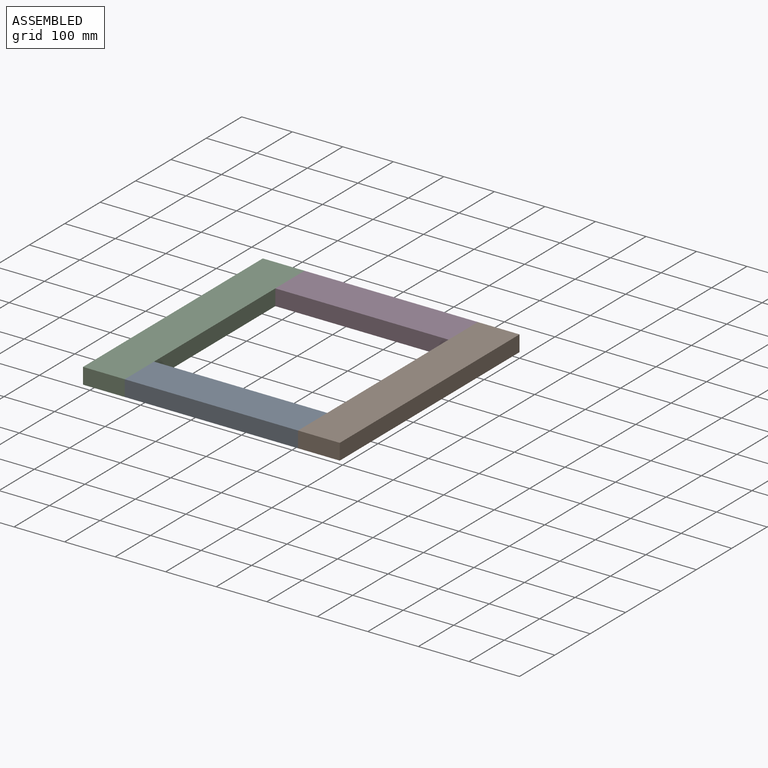
[diagram: assembled view]
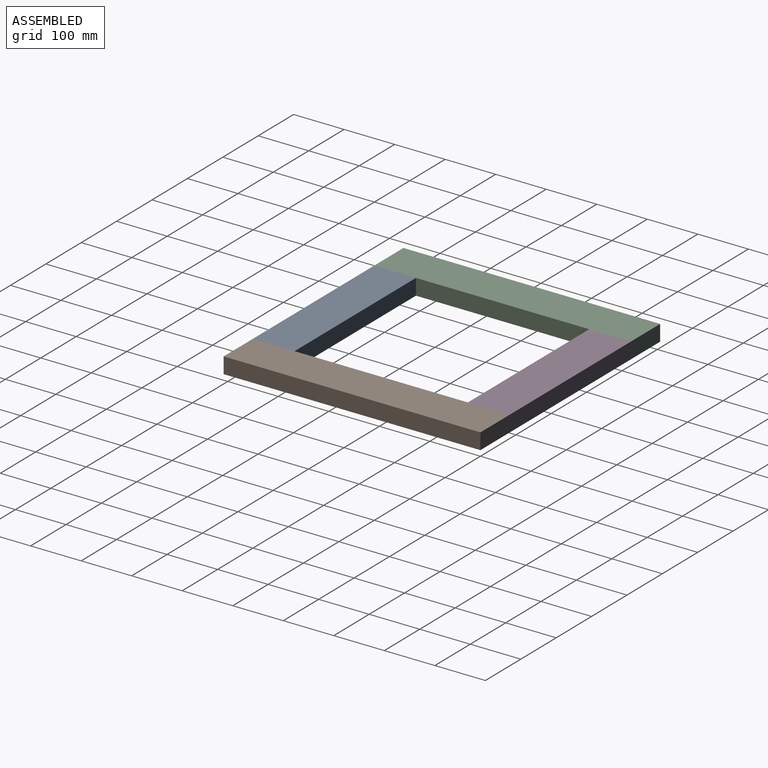
[diagram: assembled view, second angle]
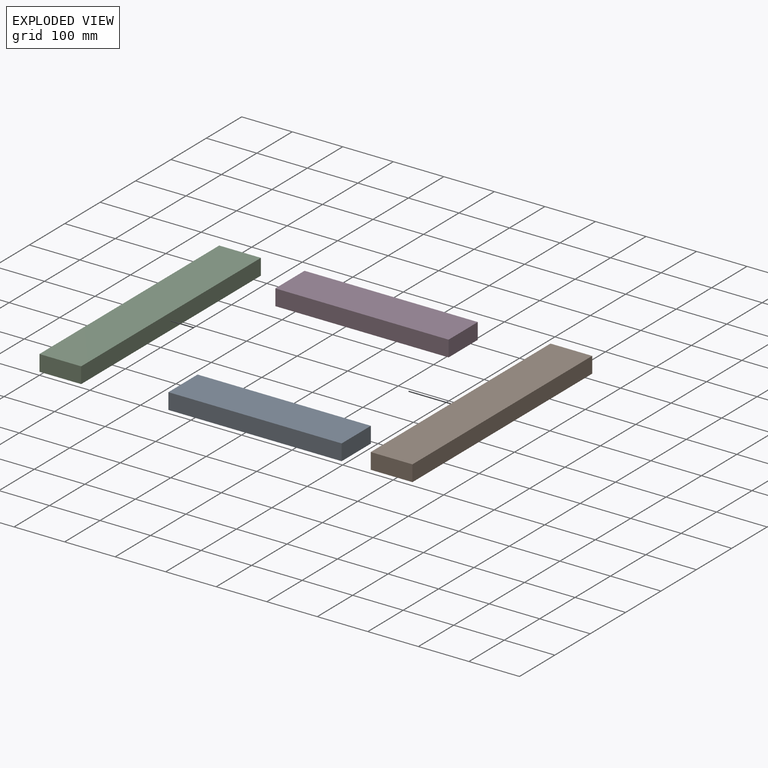
[diagram: exploded view]
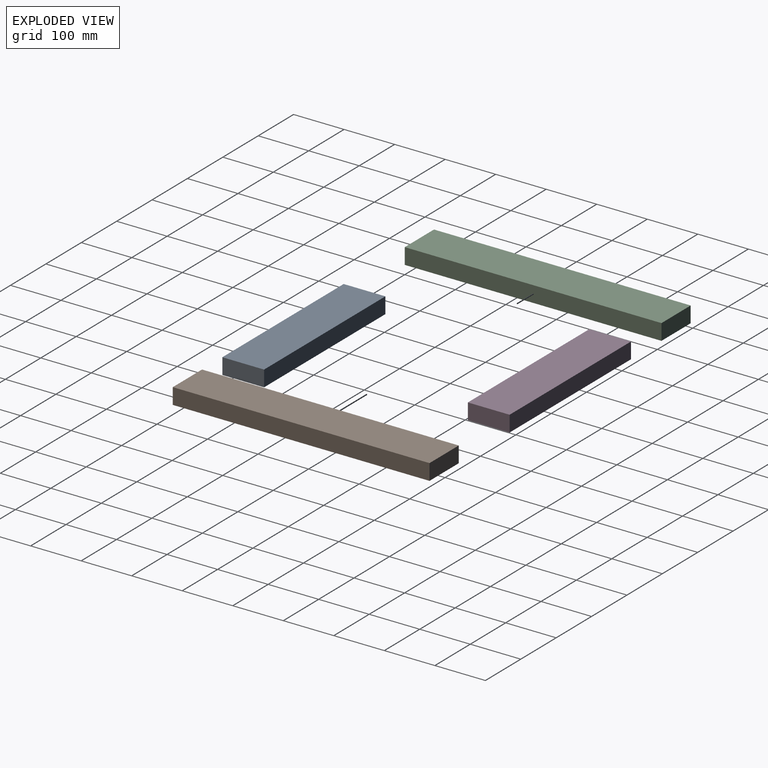
[diagram: exploded view, second angle]
ASSEMBLY  parts=4 mates=3
PART A: 6 faces, bbox 82.6x342.9x31.8 mm
  f0: plane 342.9x31.75mm, normal (1,0,0), area 10887.1mm2, adj f1,f3,f4,f5
  f1: plane 342.9x82.55mm, normal (0,0,1), area 28306.4mm2, adj f0,f2,f4,f5
  f2: plane 342.9x31.75mm, normal (-1,0,0), area 10887.1mm2, adj f1,f3,f4,f5
  f3: plane 342.9x82.55mm, normal (0,0,-1), area 28306.4mm2, adj f0,f2,f4,f5
  f4: plane 82.55x31.75mm, normal (0,-1,0), area 2621mm2, adj f0,f1,f2,f3
  f5: plane 82.55x31.75mm, normal (0,1,0), area 2621mm2, adj f0,f1,f2,f3
PART B: 6 faces, bbox 82.6x508x31.8 mm
  f0: plane 508x31.75mm, normal (1,0,0), area 16129mm2, adj f1,f3,f4,f5
  f1: plane 508x82.55mm, normal (0,0,1), area 41935.4mm2, adj f0,f2,f4,f5
  f2: plane 508x31.75mm, normal (-1,0,0), area 16129mm2, adj f1,f3,f4,f5
  f3: plane 508x82.55mm, normal (0,0,-1), area 41935.4mm2, adj f0,f2,f4,f5
  f4: plane 82.55x31.75mm, normal (0,-1,0), area 2621mm2, adj f0,f1,f2,f3
  f5: plane 82.55x31.75mm, normal (0,1,0), area 2621mm2, adj f0,f1,f2,f3
PART C: same geometry as B
PART D: same geometry as A
PLACE A rot(axis=(0,0,1),90deg) t=(-425.45,-466.72,-15.87)mm
PLACE B t=(-41.28,0,-15.88)mm
PLACE C t=(-466.73,0,-15.87)mm
PLACE D rot(axis=(0,0,1),90deg) t=(-425.45,-41.28,-15.88)mm
MATE fastened A.f4 <-> B.f2  axis (1,0,0) through (-82.55,-508,0)mm
MATE fastened D.f4 <-> B.f2  axis (1,0,0) through (-82.55,0,0)mm
MATE fastened C.f0 <-> A.f5  axis (1,0,0) through (-425.45,-508,0)mm
